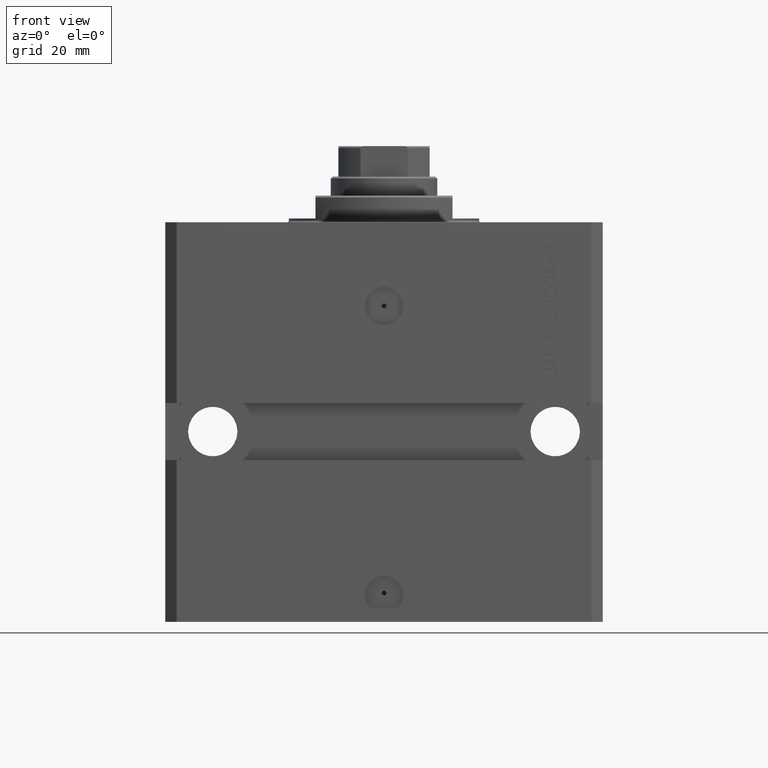
[diagram: clean part render]
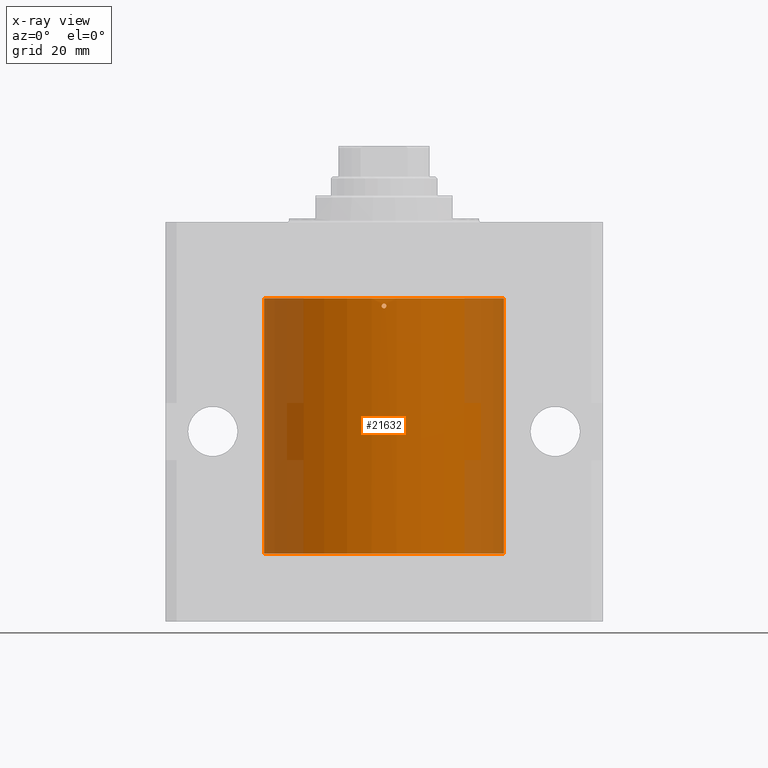
[diagram: x-ray — body ghosted, one internal face saturated and labeled with its STEP entity id]
A machine part, front view, then the same camera in x-ray: the body is ghosted and one INTERNAL B-rep face — a face not visible from any outside direction — is saturated and labeled: STEP entity #21632.
In plain terms, the highlighted cylindrical surface (partial cylindrical patch) has radius 31.5 mm, axis along (0, 0, 1).
Its self-contained STEP definition (entity closure, byte-faithful):
#480 = CARTESIAN_POINT ( 'NONE',  ( -31.49999999999999289, -0.1651478413229837960, -28.37500000000000355 ) ) ;
#675 = ORIENTED_EDGE ( 'NONE', *, *, #43317, .T. ) ;
#1173 = CARTESIAN_POINT ( 'NONE',  ( -31.50000000000000000, 7.975607743522037396E-16, -83.37500000000000000 ) ) ;
#1534 = ORIENTED_EDGE ( 'NONE', *, *, #17973, .T. ) ;
#1710 = CARTESIAN_POINT ( 'NONE',  ( -31.49380174372966223, -0.6248613812773601284, -84.16536555398843689 ) ) ;
#1733 = EDGE_CURVE ( 'NONE', #38199, #23715, #24958, .T. ) ;
#1870 = B_SPLINE_CURVE_WITH_KNOTS ( 'NONE', 3,
 ( #38138, #23303, #23754, #30953, #1710, #37456, #45098, #13083, #30265, #30726 ),
 .UNSPECIFIED., .F., .F.,
 ( 4, 2, 2, 2, 4 ),
 ( 0.001954083649707766008, 0.002442494148669357122, 0.002930904647630948670, 0.003419315146592539784, 0.003907725645554130899 ),
 .UNSPECIFIED. ) ;
#2675 = CARTESIAN_POINT ( 'NONE',  ( -0.1628418490787267303, -31.50000114677095553, -21.37494220274029288 ) ) ;
#3371 = CARTESIAN_POINT ( 'NONE',  ( -31.50000000000000000, 3.857637417314162689E-15, -20.00000000000000355 ) ) ;
#3508 = DIRECTION ( 'NONE',  ( 1.000000000000000000, 0.000000000000000000, 0.000000000000000000 ) ) ;
#3527 = VERTEX_POINT ( 'NONE', #41923 ) ;
#4101 = ORIENTED_EDGE ( 'NONE', *, *, #24520, .T. ) ;
#4169 = AXIS2_PLACEMENT_3D ( 'NONE', #12924, #9441, #23602 ) ;
#4197 = CARTESIAN_POINT ( 'NONE',  ( -31.50000000000000000, -0.1631292369235402273, -29.62500000000014211 ) ) ;
#4424 = CARTESIAN_POINT ( 'NONE',  ( -31.49851430197701063, -0.3269482044720474212, -28.44290112466940457 ) ) ;
#5730 = FACE_OUTER_BOUND ( 'NONE', #44536, .T. ) ;
#5887 = ORIENTED_EDGE ( 'NONE', *, *, #11879, .T. ) ;
#5944 = CARTESIAN_POINT ( 'NONE',  ( 0.6087381000030255285, -31.49413314945679332, -21.83636230433018000 ) ) ;
#6540 = CARTESIAN_POINT ( 'NONE',  ( -31.50000000000000000, 3.857637417314162689E-15, -87.09999999999999432 ) ) ;
#8131 = CARTESIAN_POINT ( 'NONE',  ( -31.49852099238383119, -0.3263081977449391879, -29.55741257240663700 ) ) ;
#8272 = CARTESIAN_POINT ( 'NONE',  ( -31.50000000000006395, 3.480980906124966778E-13, -29.62500000000323297 ) ) ;
#8561 = LINE ( 'NONE', #28780, #39941 ) ;
#9354 = B_SPLINE_CURVE_WITH_KNOTS ( 'NONE', 3,
 ( #17320, #38429, #5944, #16841, #27527, #20109, #34481, #2675, #31713, #41678, #13835, #27293 ),
 .UNSPECIFIED., .F., .F.,
 ( 4, 2, 2, 2, 2, 4 ),
 ( 0.000000000000000000, 0.0002442604561381583818, 0.0004885209122763167636, 0.0009770418245526261546, 0.001465562736828936088, 0.001954083649105245370 ),
 .UNSPECIFIED. ) ;
#9441 = DIRECTION ( 'NONE',  ( -0.000000000000000000, -0.000000000000000000, 1.000000000000000000 ) ) ;
#9765 = EDGE_CURVE ( 'NONE', #38403, #32393, #30711, .T. ) ;
#10026 = LINE ( 'NONE', #6540, #39051 ) ;
#10688 = CIRCLE ( 'NONE', #45531, 31.50000000000000000 ) ;
#10942 = CARTESIAN_POINT ( 'NONE',  ( -31.50000000000000000, 6.762885151983182724E-15, -28.37500000000000355 ) ) ;
#11756 = ORIENTED_EDGE ( 'NONE', *, *, #1733, .T. ) ;
#11879 = EDGE_CURVE ( 'NONE', #23715, #32393, #10688, .T. ) ;
#12924 = CARTESIAN_POINT ( 'NONE',  ( 0.000000000000000000, 0.000000000000000000, -87.09999999999999432 ) ) ;
#13083 = CARTESIAN_POINT ( 'NONE',  ( -31.49851430197701063, -0.3269482044720565805, -83.44290112466941878 ) ) ;
#13251 = CARTESIAN_POINT ( 'NONE',  ( 31.50000000000000000, 0.000000000000000000, -87.09999999999999432 ) ) ;
#13835 = CARTESIAN_POINT ( 'NONE',  ( -0.6249999999998562261, -31.49379899281762363, -21.83683388490861077 ) ) ;
#14200 = DIRECTION ( 'NONE',  ( 0.000000000000000000, 0.000000000000000000, 1.000000000000000000 ) ) ;
#14203 = AXIS2_PLACEMENT_3D ( 'NONE', #15785, #19730, #16475 ) ;
#15066 = EDGE_CURVE ( 'NONE', #24205, #38954, #20785, .T. ) ;
#15271 = ORIENTED_EDGE ( 'NONE', *, *, #45869, .F. ) ;
#15785 = CARTESIAN_POINT ( 'NONE',  ( 0.000000000000000000, 0.000000000000000000, -87.09999999999999432 ) ) ;
#15909 = ORIENTED_EDGE ( 'NONE', *, *, #9765, .F. ) ;
#16068 = CARTESIAN_POINT ( 'NONE',  ( 0.5570988765663296149, -31.49528499647870916, -22.32694820251968082 ) ) ;
#16295 = CARTESIAN_POINT ( 'NONE',  ( 0.6250000000000038858, -31.49379899281761652, -22.00000000000000000 ) ) ;
#16475 = DIRECTION ( 'NONE',  ( 1.000000000000000000, 0.000000000000000000, 0.000000000000000000 ) ) ;
#16841 = CARTESIAN_POINT ( 'NONE',  ( 0.5459820889822476486, -31.49528359085879714, -21.68497154358692924 ) ) ;
#17320 = CARTESIAN_POINT ( 'NONE',  ( 0.6250000000000038858, -31.49379899281761652, -22.00000000000000000 ) ) ;
#17446 = CARTESIAN_POINT ( 'NONE',  ( 0.000000000000000000, 0.000000000000000000, -20.00000000000000355 ) ) ;
#17823 = B_SPLINE_CURVE_WITH_KNOTS ( 'NONE', 3,
 ( #42516, #4197, #8131, #36447, #32293, #25552, #39263, #4424, #480, #10942 ),
 .UNSPECIFIED., .F., .F.,
 ( 4, 2, 2, 2, 4 ),
 ( 0.001954083649707758635, 0.002442494148669346714, 0.002930904647630934792, 0.003419315146592522871, 0.003907725645554110949 ),
 .UNSPECIFIED. ) ;
#17973 = EDGE_CURVE ( 'NONE', #32519, #38199, #17823, .T. ) ;
#19561 = CARTESIAN_POINT ( 'NONE',  ( -0.5574125734152228784, -31.49527830517388693, -22.32630819604779049 ) ) ;
#19730 = DIRECTION ( 'NONE',  ( 0.000000000000000000, 0.000000000000000000, 1.000000000000000000 ) ) ;
#20016 = CARTESIAN_POINT ( 'NONE',  ( 0.1643160695185328923, -31.50000274162724523, -22.62513817806167538 ) ) ;
#20109 = CARTESIAN_POINT ( 'NONE',  ( 0.3265099136744073482, -31.49851901558239220, -21.44266766721194983 ) ) ;
#20709 = DIRECTION ( 'NONE',  ( -0.000000000000000000, -0.000000000000000000, 1.000000000000000000 ) ) ;
#20785 = B_SPLINE_CURVE_WITH_KNOTS ( 'NONE', 3,
 ( #26748, #23269, #19561, #23037, #33481, #20016, #44607, #16068, #36959, #16295 ),
 .UNSPECIFIED., .F., .F.,
 ( 4, 2, 2, 2, 4 ),
 ( 0.001954083649105245370, 0.002442494147866518424, 0.002930904646627791044, 0.003419315145389063663, 0.003907725644150336283 ),
 .UNSPECIFIED. ) ;
#21632 = ADVANCED_FACE ( 'NONE', ( #23375, #5730 ), #34041, .F. ) ;
#21745 = VECTOR ( 'NONE', #41379, 1000.000000000000000 ) ;
#22284 = ORIENTED_EDGE ( 'NONE', *, *, #22354, .T. ) ;
#22354 = EDGE_CURVE ( 'NONE', #33638, #3527, #10026, .T. ) ;
#23037 = CARTESIAN_POINT ( 'NONE',  ( -0.3270938137891216124, -31.49851224953870243, -22.55695193041252367 ) ) ;
#23269 = CARTESIAN_POINT ( 'NONE',  ( -0.6250000000001370015, -31.49379899281761652, -22.16312923694681913 ) ) ;
#23303 = CARTESIAN_POINT ( 'NONE',  ( -31.50000000000000000, -0.1631292369235410877, -84.62500000000012790 ) ) ;
#23375 = FACE_BOUND ( 'NONE', #41305, .T. ) ;
#23602 = DIRECTION ( 'NONE',  ( 1.000000000000000000, 0.000000000000000000, 0.000000000000000000 ) ) ;
#23715 = VERTEX_POINT ( 'NONE', #3371 ) ;
#23754 = CARTESIAN_POINT ( 'NONE',  ( -31.49852099238383119, -0.3263081977449419080, -84.55741257240664766 ) ) ;
#24040 = CARTESIAN_POINT ( 'NONE',  ( -31.50000000000000000, 6.762885151983182724E-15, -28.37500000000000355 ) ) ;
#24205 = VERTEX_POINT ( 'NONE', #37796 ) ;
#24520 = EDGE_CURVE ( 'NONE', #38954, #24205, #9354, .T. ) ;
#24958 = LINE ( 'NONE', #35176, #35826 ) ;
#25016 = CARTESIAN_POINT ( 'NONE',  ( -31.50000000000000000, 3.857637417314162689E-15, -87.09999999999999432 ) ) ;
#25445 = ORIENTED_EDGE ( 'NONE', *, *, #35288, .T. ) ;
#25552 = CARTESIAN_POINT ( 'NONE',  ( -31.49379625064871391, -0.6251381781548988048, -28.83568393118471462 ) ) ;
#26748 = CARTESIAN_POINT ( 'NONE',  ( -0.6250000000032320813, -31.49379899281755257, -21.99999999999966604 ) ) ;
#27293 = CARTESIAN_POINT ( 'NONE',  ( -0.6250000000032320813, -31.49379899281755257, -21.99999999999966604 ) ) ;
#27527 = CARTESIAN_POINT ( 'NONE',  ( 0.4995391884764857626, -31.49609162775374216, -21.61563511814824068 ) ) ;
#28780 = CARTESIAN_POINT ( 'NONE',  ( -31.50000000000000000, 3.857637417314162689E-15, -87.09999999999999432 ) ) ;
#30265 = CARTESIAN_POINT ( 'NONE',  ( -31.49999999999999289, -0.1651478413229881259, -83.37500000000000000 ) ) ;
#30514 = CIRCLE ( 'NONE', #14203, 31.50000000000000000 ) ;
#30711 = LINE ( 'NONE', #38359, #21745 ) ;
#30726 = CARTESIAN_POINT ( 'NONE',  ( -31.50000000000000000, 7.975607743522037396E-16, -83.37500000000000000 ) ) ;
#30953 = CARTESIAN_POINT ( 'NONE',  ( -31.49528704891774211, -0.5569519313505050251, -84.32709381216628231 ) ) ;
#31713 = CARTESIAN_POINT ( 'NONE',  ( -0.3251151328894873460, -31.49853847942450003, -21.44128808491867488 ) ) ;
#31938 = DIRECTION ( 'NONE',  ( -0.000000000000000000, -0.000000000000000000, 1.000000000000000000 ) ) ;
#32293 = CARTESIAN_POINT ( 'NONE',  ( -31.49380174372966223, -0.6248613812773544662, -29.16536555398840491 ) ) ;
#32393 = VERTEX_POINT ( 'NONE', #44565 ) ;
#32519 = VERTEX_POINT ( 'NONE', #8272 ) ;
#33481 = CARTESIAN_POINT ( 'NONE',  ( -0.1653655539801978380, -31.49999724963134540, -22.62486138137118630 ) ) ;
#33638 = VERTEX_POINT ( 'NONE', #25016 ) ;
#34041 = CYLINDRICAL_SURFACE ( 'NONE', #4169, 31.50000000000000000 ) ;
#34481 = CARTESIAN_POINT ( 'NONE',  ( 0.1632852082560532214, -31.49999885166899460, -21.37505787588663964 ) ) ;
#35176 = CARTESIAN_POINT ( 'NONE',  ( -31.50000000000000000, 3.857637417314162689E-15, -87.09999999999999432 ) ) ;
#35288 = EDGE_CURVE ( 'NONE', #45797, #32519, #8561, .T. ) ;
#35826 = VECTOR ( 'NONE', #31938, 1000.000000000000000 ) ;
#36447 = CARTESIAN_POINT ( 'NONE',  ( -31.49528704891774211, -0.5569519313504972535, -29.32709381216628586 ) ) ;
#36959 = CARTESIAN_POINT ( 'NONE',  ( 0.6250000000000036637, -31.49379899281762363, -22.16514784144521499 ) ) ;
#37029 = ORIENTED_EDGE ( 'NONE', *, *, #15066, .T. ) ;
#37456 = CARTESIAN_POINT ( 'NONE',  ( -31.49379625064871391, -0.6251381781549137928, -83.83568393118474660 ) ) ;
#37796 = CARTESIAN_POINT ( 'NONE',  ( -0.6250000000032320813, -31.49379899281755257, -21.99999999999966604 ) ) ;
#38138 = CARTESIAN_POINT ( 'NONE',  ( -31.50000000000006395, 3.480981129463732167E-13, -84.62500000000324007 ) ) ;
#38199 = VERTEX_POINT ( 'NONE', #24040 ) ;
#38359 = CARTESIAN_POINT ( 'NONE',  ( 31.50000000000000000, 0.000000000000000000, -87.09999999999999432 ) ) ;
#38403 = VERTEX_POINT ( 'NONE', #13251 ) ;
#38429 = CARTESIAN_POINT ( 'NONE',  ( 0.6250000000000037748, -31.49379899281763073, -21.91740741203567922 ) ) ;
#38954 = VERTEX_POINT ( 'NONE', #41703 ) ;
#39051 = VECTOR ( 'NONE', #20709, 1000.000000000000000 ) ;
#39263 = CARTESIAN_POINT ( 'NONE',  ( -31.49527619204366857, -0.5575625051463114490, -28.67384307740432092 ) ) ;
#39941 = VECTOR ( 'NONE', #43619, 1000.000000000000000 ) ;
#41305 = EDGE_LOOP ( 'NONE', ( #4101, #37029 ) ) ;
#41379 = DIRECTION ( 'NONE',  ( -0.000000000000000000, -0.000000000000000000, 1.000000000000000000 ) ) ;
#41678 = CARTESIAN_POINT ( 'NONE',  ( -0.5585547059209764464, -31.49526381584878010, -21.67461485254990450 ) ) ;
#41703 = CARTESIAN_POINT ( 'NONE',  ( 0.6250000000000038858, -31.49379899281761652, -22.00000000000000000 ) ) ;
#41923 = CARTESIAN_POINT ( 'NONE',  ( -31.50000000000006395, 3.480981129463732167E-13, -84.62500000000324007 ) ) ;
#42516 = CARTESIAN_POINT ( 'NONE',  ( -31.50000000000006395, 3.480980906124966778E-13, -29.62500000000323297 ) ) ;
#43317 = EDGE_CURVE ( 'NONE', #3527, #45797, #1870, .T. ) ;
#43619 = DIRECTION ( 'NONE',  ( -0.000000000000000000, -0.000000000000000000, 1.000000000000000000 ) ) ;
#44536 = EDGE_LOOP ( 'NONE', ( #15271, #22284, #675, #25445, #1534, #11756, #5887, #15909 ) ) ;
#44565 = CARTESIAN_POINT ( 'NONE',  ( 31.50000000000000000, 0.000000000000000000, -20.00000000000000355 ) ) ;
#44607 = CARTESIAN_POINT ( 'NONE',  ( 0.3261569241153874366, -31.49852310551305834, -22.55756250434718524 ) ) ;
#45098 = CARTESIAN_POINT ( 'NONE',  ( -31.49527619204366857, -0.5575625051463212190, -83.67384307740434224 ) ) ;
#45531 = AXIS2_PLACEMENT_3D ( 'NONE', #17446, #14200, #3508 ) ;
#45797 = VERTEX_POINT ( 'NONE', #1173 ) ;
#45869 = EDGE_CURVE ( 'NONE', #33638, #38403, #30514, .T. ) ;